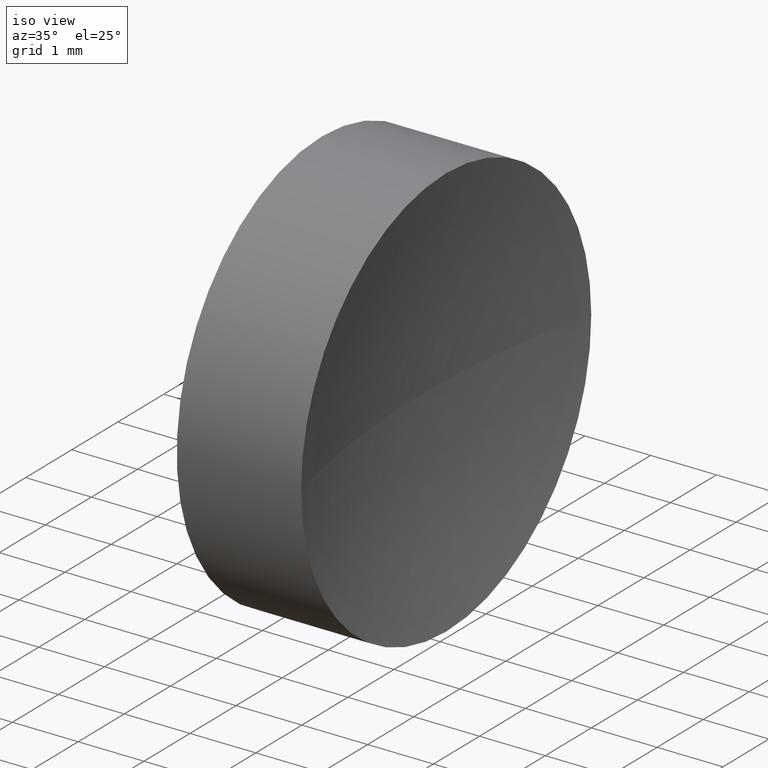
[diagram: clean part render]
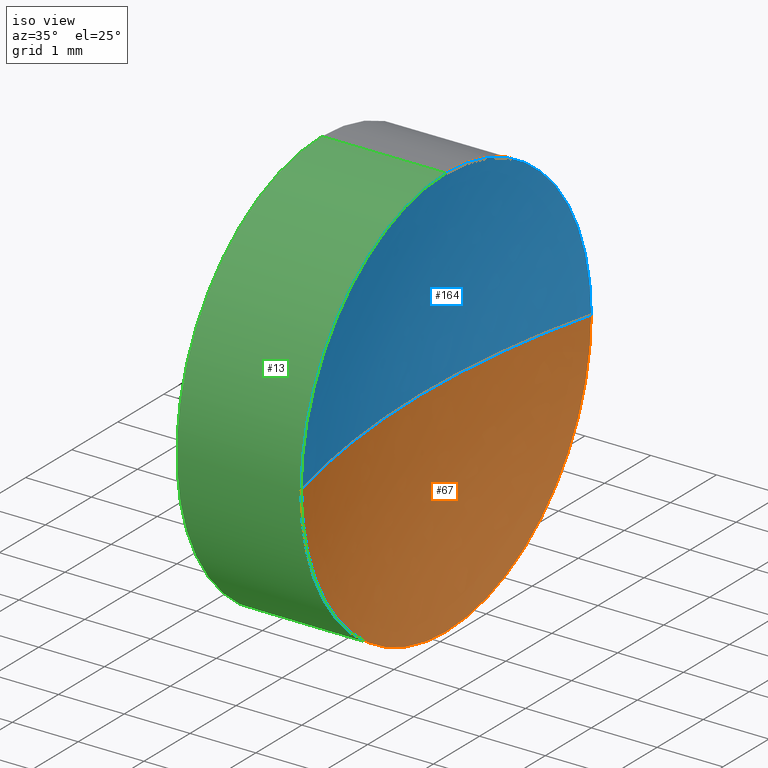
[diagram: same view with three faces highlighted in distinct colors, each labeled with its STEP entity id]
A machine part, iso view with three faces highlighted in distinct colors.
Their STEP definitions:

[orange] entity #67 — the highlighted spherical surface has radius 12.9162 mm.
#4 = EDGE_CURVE ( 'NONE', #68, #25, #99, .T. ) ;
#11 = DIRECTION ( 'NONE',  ( 0.0000000000000000000, 0.0000000000000000000, 1.000000000000000000 ) ) ;
#19 = CARTESIAN_POINT ( 'NONE',  ( 24.06218947520228100, 13.04452057459747900, -3.150000000000001700 ) ) ;
#25 = VERTEX_POINT ( 'NONE', #170 ) ;
#35 = ORIENTED_EDGE ( 'NONE', *, *, #129, .F. ) ;
#39 = CARTESIAN_POINT ( 'NONE',  ( 24.06218947520228100, 13.04452057459747900, 0.0000000000000000000 ) ) ;
#41 = ORIENTED_EDGE ( 'NONE', *, *, #4, .T. ) ;
#49 = DIRECTION ( 'NONE',  ( 0.0000000000000000000, 0.0000000000000000000, 1.000000000000000000 ) ) ;
#53 = CIRCLE ( 'NONE', #71, 12.91615384615382700 ) ;
#55 = FACE_OUTER_BOUND ( 'NONE', #114, .T. ) ;
#57 = VERTEX_POINT ( 'NONE', #19 ) ;
#60 = DIRECTION ( 'NONE',  ( -1.000000000000000000, 0.0000000000000000000, 0.0000000000000000000 ) ) ;
#65 = CARTESIAN_POINT ( 'NONE',  ( 24.06218947520228100, 9.894520574597482500, 0.0000000000000000000 ) ) ;
#67 = ADVANCED_FACE ( 'NONE', ( #55 ), #134, .F. ) ;
#68 = VERTEX_POINT ( 'NONE', #171 ) ;
#71 = AXIS2_PLACEMENT_3D ( 'NONE', #111, #185, #60 ) ;
#73 = ORIENTED_EDGE ( 'NONE', *, *, #89, .F. ) ;
#76 = CARTESIAN_POINT ( 'NONE',  ( 36.58834332135611300, 13.04452057459747900, 0.0000000000000000000 ) ) ;
#81 = DIRECTION ( 'NONE',  ( -1.000000000000000000, -0.0000000000000000000, -0.0000000000000000000 ) ) ;
#89 = EDGE_CURVE ( 'NONE', #68, #57, #100, .T. ) ;
#97 = CARTESIAN_POINT ( 'NONE',  ( 24.06218947520228100, 13.04452057459747900, 0.0000000000000000000 ) ) ;
#99 = CIRCLE ( 'NONE', #161, 12.91615384615382700 ) ;
#100 = CIRCLE ( 'NONE', #133, 3.150000000000001700 ) ;
#102 = AXIS2_PLACEMENT_3D ( 'NONE', #97, #127, #49 ) ;
#103 = AXIS2_PLACEMENT_3D ( 'NONE', #124, #157, #159 ) ;
#108 = DIRECTION ( 'NONE',  ( 0.0000000000000000000, -1.000000000000000000, -1.224646799147353200E-016 ) ) ;
#111 = CARTESIAN_POINT ( 'NONE',  ( 36.58834332135611300, 13.04452057459747900, 0.0000000000000000000 ) ) ;
#114 = EDGE_LOOP ( 'NONE', ( #73, #41, #180, #35 ) ) ;
#124 = CARTESIAN_POINT ( 'NONE',  ( 36.58834332135611300, 13.04452057459747900, 0.0000000000000000000 ) ) ;
#127 = DIRECTION ( 'NONE',  ( -1.000000000000000000, -0.0000000000000000000, -0.0000000000000000000 ) ) ;
#129 = EDGE_CURVE ( 'NONE', #57, #130, #132, .T. ) ;
#130 = VERTEX_POINT ( 'NONE', #65 ) ;
#132 = CIRCLE ( 'NONE', #102, 3.150000000000001700 ) ;
#133 = AXIS2_PLACEMENT_3D ( 'NONE', #39, #81, #11 ) ;
#134 = SPHERICAL_SURFACE ( 'NONE', #103, 12.91615384615382700 ) ;
#157 = DIRECTION ( 'NONE',  ( 0.0000000000000000000, 0.0000000000000000000, 1.000000000000000000 ) ) ;
#159 = DIRECTION ( 'NONE',  ( 0.0000000000000000000, -1.000000000000000000, 0.0000000000000000000 ) ) ;
#161 = AXIS2_PLACEMENT_3D ( 'NONE', #76, #169, #108 ) ;
#169 = DIRECTION ( 'NONE',  ( 0.0000000000000000000, -1.224646799147353200E-016, 1.000000000000000000 ) ) ;
#170 = CARTESIAN_POINT ( 'NONE',  ( 23.67218947520228400, 13.04452057459747900, 0.0000000000000000000 ) ) ;
#171 = CARTESIAN_POINT ( 'NONE',  ( 24.06218947520228100, 16.19452057459747600, 3.857637417314158300E-016 ) ) ;
#180 = ORIENTED_EDGE ( 'NONE', *, *, #182, .F. ) ;
#182 = EDGE_CURVE ( 'NONE', #130, #25, #53, .T. ) ;
#185 = DIRECTION ( 'NONE',  ( 0.0000000000000000000, 0.0000000000000000000, -1.000000000000000000 ) ) ;

[blue] entity #164 — the highlighted spherical surface has radius 12.9162 mm.
#1 = DIRECTION ( 'NONE',  ( 0.0000000000000000000, 0.0000000000000000000, 1.000000000000000000 ) ) ;
#4 = EDGE_CURVE ( 'NONE', #68, #25, #99, .T. ) ;
#21 = CARTESIAN_POINT ( 'NONE',  ( 24.06218947520228100, 13.04452057459747900, 0.0000000000000000000 ) ) ;
#24 = CIRCLE ( 'NONE', #26, 3.150000000000001700 ) ;
#25 = VERTEX_POINT ( 'NONE', #170 ) ;
#26 = AXIS2_PLACEMENT_3D ( 'NONE', #21, #82, #146 ) ;
#27 = ORIENTED_EDGE ( 'NONE', *, *, #4, .F. ) ;
#42 = FACE_OUTER_BOUND ( 'NONE', #178, .T. ) ;
#48 = CARTESIAN_POINT ( 'NONE',  ( 24.06218947520228100, 13.04452057459747900, 0.0000000000000000000 ) ) ;
#53 = CIRCLE ( 'NONE', #71, 12.91615384615382700 ) ;
#60 = DIRECTION ( 'NONE',  ( -1.000000000000000000, 0.0000000000000000000, 0.0000000000000000000 ) ) ;
#63 = DIRECTION ( 'NONE',  ( 0.0000000000000000000, 0.0000000000000000000, 1.000000000000000000 ) ) ;
#65 = CARTESIAN_POINT ( 'NONE',  ( 24.06218947520228100, 9.894520574597482500, 0.0000000000000000000 ) ) ;
#68 = VERTEX_POINT ( 'NONE', #171 ) ;
#69 = SPHERICAL_SURFACE ( 'NONE', #96, 12.91615384615382700 ) ;
#71 = AXIS2_PLACEMENT_3D ( 'NONE', #111, #185, #60 ) ;
#76 = CARTESIAN_POINT ( 'NONE',  ( 36.58834332135611300, 13.04452057459747900, 0.0000000000000000000 ) ) ;
#78 = DIRECTION ( 'NONE',  ( 0.0000000000000000000, -1.000000000000000000, 0.0000000000000000000 ) ) ;
#82 = DIRECTION ( 'NONE',  ( -1.000000000000000000, -0.0000000000000000000, -0.0000000000000000000 ) ) ;
#84 = ORIENTED_EDGE ( 'NONE', *, *, #122, .F. ) ;
#95 = DIRECTION ( 'NONE',  ( -1.000000000000000000, -0.0000000000000000000, -0.0000000000000000000 ) ) ;
#96 = AXIS2_PLACEMENT_3D ( 'NONE', #175, #1, #78 ) ;
#99 = CIRCLE ( 'NONE', #161, 12.91615384615382700 ) ;
#106 = AXIS2_PLACEMENT_3D ( 'NONE', #48, #95, #63 ) ;
#107 = ORIENTED_EDGE ( 'NONE', *, *, #182, .T. ) ;
#108 = DIRECTION ( 'NONE',  ( 0.0000000000000000000, -1.000000000000000000, -1.224646799147353200E-016 ) ) ;
#111 = CARTESIAN_POINT ( 'NONE',  ( 36.58834332135611300, 13.04452057459747900, 0.0000000000000000000 ) ) ;
#115 = ORIENTED_EDGE ( 'NONE', *, *, #117, .F. ) ;
#117 = EDGE_CURVE ( 'NONE', #166, #68, #24, .T. ) ;
#122 = EDGE_CURVE ( 'NONE', #130, #166, #179, .T. ) ;
#130 = VERTEX_POINT ( 'NONE', #65 ) ;
#145 = CARTESIAN_POINT ( 'NONE',  ( 24.06218947520228100, 13.04452057459747900, 3.150000000000001700 ) ) ;
#146 = DIRECTION ( 'NONE',  ( 0.0000000000000000000, 0.0000000000000000000, 1.000000000000000000 ) ) ;
#161 = AXIS2_PLACEMENT_3D ( 'NONE', #76, #169, #108 ) ;
#164 = ADVANCED_FACE ( 'NONE', ( #42 ), #69, .F. ) ;
#166 = VERTEX_POINT ( 'NONE', #145 ) ;
#169 = DIRECTION ( 'NONE',  ( 0.0000000000000000000, -1.224646799147353200E-016, 1.000000000000000000 ) ) ;
#170 = CARTESIAN_POINT ( 'NONE',  ( 23.67218947520228400, 13.04452057459747900, 0.0000000000000000000 ) ) ;
#171 = CARTESIAN_POINT ( 'NONE',  ( 24.06218947520228100, 16.19452057459747600, 3.857637417314158300E-016 ) ) ;
#175 = CARTESIAN_POINT ( 'NONE',  ( 36.58834332135611300, 13.04452057459747900, 0.0000000000000000000 ) ) ;
#178 = EDGE_LOOP ( 'NONE', ( #27, #115, #84, #107 ) ) ;
#179 = CIRCLE ( 'NONE', #106, 3.150000000000001700 ) ;
#182 = EDGE_CURVE ( 'NONE', #130, #25, #53, .T. ) ;
#185 = DIRECTION ( 'NONE',  ( 0.0000000000000000000, 0.0000000000000000000, -1.000000000000000000 ) ) ;

[green] entity #13 — the highlighted cylindrical surface (partial cylindrical patch) has radius 3.15 mm, axis along (-1, -0, -0).
#6 = ORIENTED_EDGE ( 'NONE', *, *, #122, .T. ) ;
#8 = EDGE_CURVE ( 'NONE', #166, #110, #151, .T. ) ;
#9 = EDGE_LOOP ( 'NONE', ( #155, #121, #6, #177, #66 ) ) ;
#13 = ADVANCED_FACE ( 'NONE', ( #70 ), #54, .T. ) ;
#17 = DIRECTION ( 'NONE',  ( 0.0000000000000000000, 0.0000000000000000000, 1.000000000000000000 ) ) ;
#18 = CIRCLE ( 'NONE', #72, 3.150000000000001700 ) ;
#19 = CARTESIAN_POINT ( 'NONE',  ( 24.06218947520228100, 13.04452057459747900, -3.150000000000001700 ) ) ;
#20 = CARTESIAN_POINT ( 'NONE',  ( 22.17218947520228100, 13.04452057459747900, -3.150000000000001700 ) ) ;
#31 = DIRECTION ( 'NONE',  ( -1.000000000000000000, -0.0000000000000000000, -0.0000000000000000000 ) ) ;
#43 = DIRECTION ( 'NONE',  ( -1.000000000000000000, -0.0000000000000000000, -0.0000000000000000000 ) ) ;
#48 = CARTESIAN_POINT ( 'NONE',  ( 24.06218947520228100, 13.04452057459747900, 0.0000000000000000000 ) ) ;
#49 = DIRECTION ( 'NONE',  ( 0.0000000000000000000, 0.0000000000000000000, 1.000000000000000000 ) ) ;
#52 = EDGE_CURVE ( 'NONE', #85, #110, #18, .T. ) ;
#54 = CYLINDRICAL_SURFACE ( 'NONE', #168, 3.150000000000001700 ) ;
#57 = VERTEX_POINT ( 'NONE', #19 ) ;
#59 = EDGE_CURVE ( 'NONE', #57, #85, #62, .T. ) ;
#62 = LINE ( 'NONE', #135, #142 ) ;
#63 = DIRECTION ( 'NONE',  ( 0.0000000000000000000, 0.0000000000000000000, 1.000000000000000000 ) ) ;
#65 = CARTESIAN_POINT ( 'NONE',  ( 24.06218947520228100, 9.894520574597482500, 0.0000000000000000000 ) ) ;
#66 = ORIENTED_EDGE ( 'NONE', *, *, #52, .F. ) ;
#70 = FACE_OUTER_BOUND ( 'NONE', #9, .T. ) ;
#72 = AXIS2_PLACEMENT_3D ( 'NONE', #119, #31, #91 ) ;
#85 = VERTEX_POINT ( 'NONE', #20 ) ;
#87 = CARTESIAN_POINT ( 'NONE',  ( 21.22493055706841100, 13.04452057459747900, 0.0000000000000000000 ) ) ;
#88 = CARTESIAN_POINT ( 'NONE',  ( 22.17218947520228100, 13.04452057459747900, 3.150000000000001700 ) ) ;
#91 = DIRECTION ( 'NONE',  ( 0.0000000000000000000, 0.0000000000000000000, 1.000000000000000000 ) ) ;
#95 = DIRECTION ( 'NONE',  ( -1.000000000000000000, -0.0000000000000000000, -0.0000000000000000000 ) ) ;
#97 = CARTESIAN_POINT ( 'NONE',  ( 24.06218947520228100, 13.04452057459747900, 0.0000000000000000000 ) ) ;
#102 = AXIS2_PLACEMENT_3D ( 'NONE', #97, #127, #49 ) ;
#104 = VECTOR ( 'NONE', #43, 1000.000000000000000 ) ;
#106 = AXIS2_PLACEMENT_3D ( 'NONE', #48, #95, #63 ) ;
#110 = VERTEX_POINT ( 'NONE', #88 ) ;
#119 = CARTESIAN_POINT ( 'NONE',  ( 22.17218947520228100, 13.04452057459747900, 0.0000000000000000000 ) ) ;
#121 = ORIENTED_EDGE ( 'NONE', *, *, #129, .T. ) ;
#122 = EDGE_CURVE ( 'NONE', #130, #166, #179, .T. ) ;
#127 = DIRECTION ( 'NONE',  ( -1.000000000000000000, -0.0000000000000000000, -0.0000000000000000000 ) ) ;
#129 = EDGE_CURVE ( 'NONE', #57, #130, #132, .T. ) ;
#130 = VERTEX_POINT ( 'NONE', #65 ) ;
#132 = CIRCLE ( 'NONE', #102, 3.150000000000001700 ) ;
#135 = CARTESIAN_POINT ( 'NONE',  ( 21.22493055706841100, 13.04452057459747900, -3.150000000000001700 ) ) ;
#138 = DIRECTION ( 'NONE',  ( -1.000000000000000000, -0.0000000000000000000, -0.0000000000000000000 ) ) ;
#142 = VECTOR ( 'NONE', #138, 1000.000000000000000 ) ;
#145 = CARTESIAN_POINT ( 'NONE',  ( 24.06218947520228100, 13.04452057459747900, 3.150000000000001700 ) ) ;
#151 = LINE ( 'NONE', #162, #104 ) ;
#155 = ORIENTED_EDGE ( 'NONE', *, *, #59, .F. ) ;
#162 = CARTESIAN_POINT ( 'NONE',  ( 21.22493055706841100, 13.04452057459747900, 3.150000000000001700 ) ) ;
#166 = VERTEX_POINT ( 'NONE', #145 ) ;
#168 = AXIS2_PLACEMENT_3D ( 'NONE', #87, #181, #17 ) ;
#177 = ORIENTED_EDGE ( 'NONE', *, *, #8, .T. ) ;
#179 = CIRCLE ( 'NONE', #106, 3.150000000000001700 ) ;
#181 = DIRECTION ( 'NONE',  ( -1.000000000000000000, -0.0000000000000000000, -0.0000000000000000000 ) ) ;